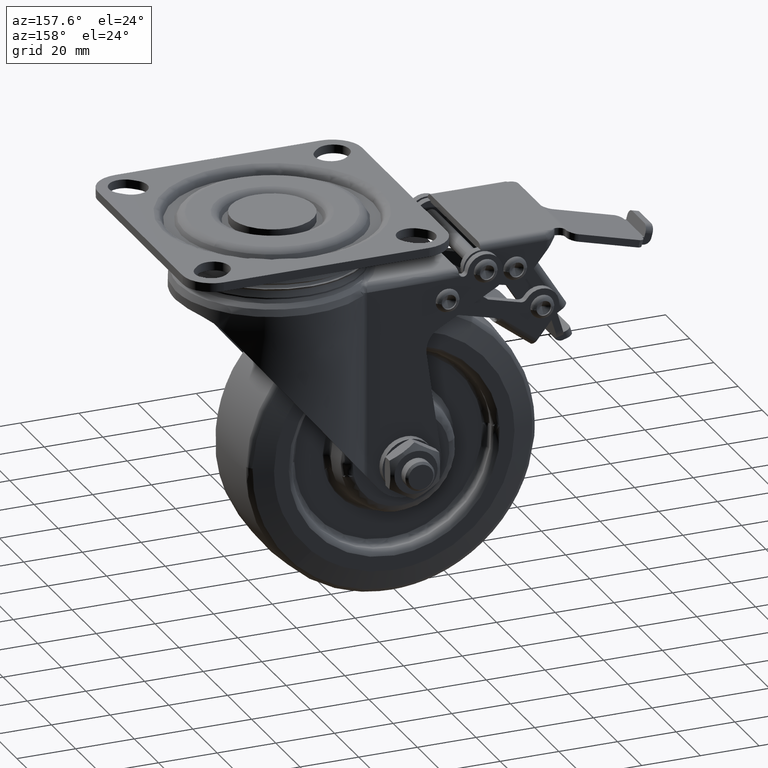
[diagram: clean part render]
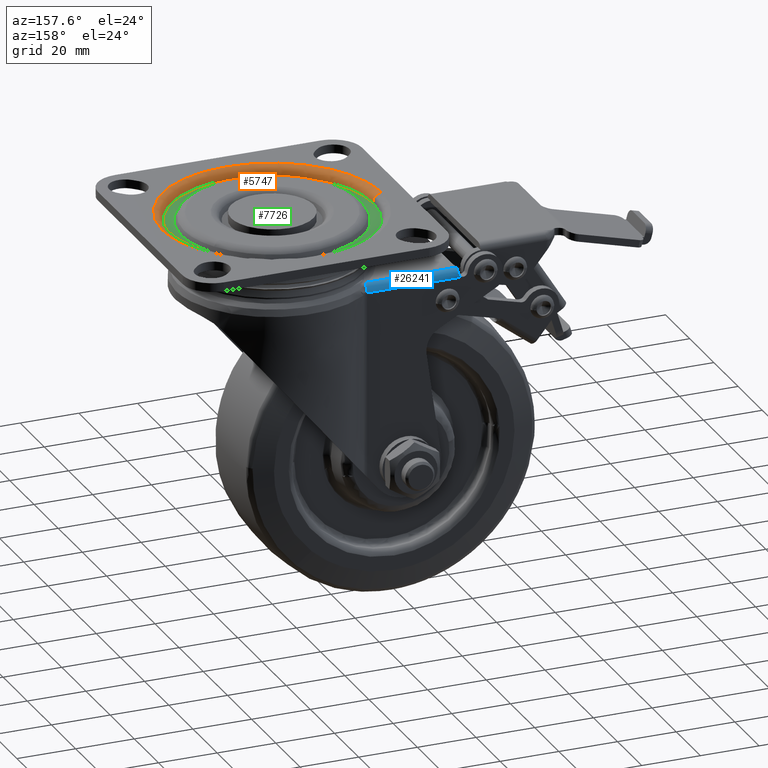
[diagram: same view with three faces highlighted in distinct colors, each labeled with its STEP entity id]
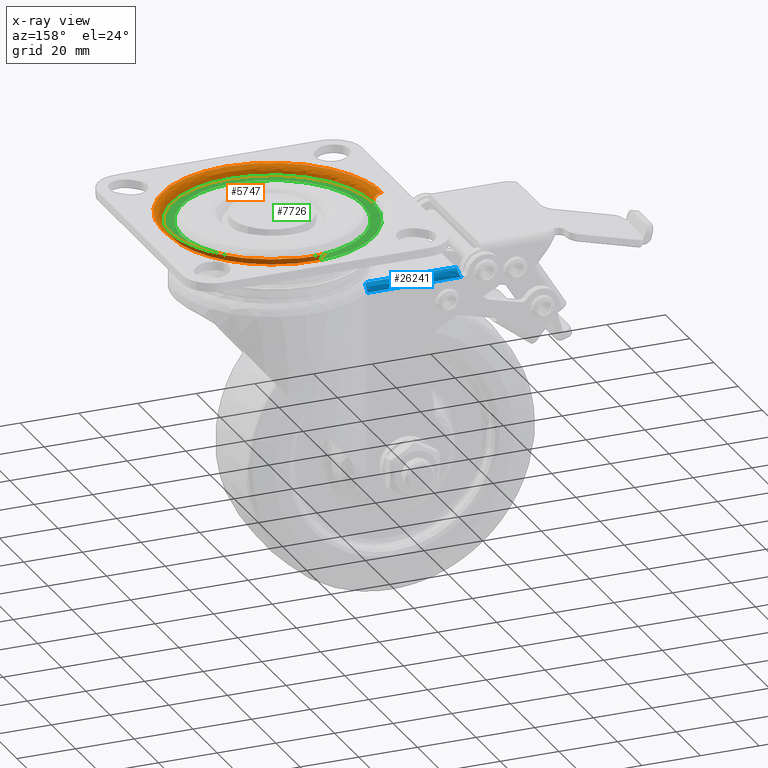
[diagram: x-ray of the same camera — body ghosted, the three highlighted faces saturated]
A machine part, auxiliary view with three faces highlighted in distinct colors.
The next image is the same camera in x-ray (body ghosted, the three faces saturated) — at least one of them is partly hidden behind the body in this view.
Their STEP definitions:

[orange] entity #5747 — the highlighted face is a freeform B-spline surface patch.
#5566=CARTESIAN_POINT('',(-2.406301676067495,34.423260111253967,-3.208611403206546));
#5567=CARTESIAN_POINT('',(-1.421123711593919,34.492127364950299,-3.208611403206547));
#5568=CARTESIAN_POINT('',(-0.433619629411420,34.504537360473059,-3.208611403206547));
#5569=CARTESIAN_POINT('',(34.070917731061655,34.938156989884490,-3.208611403206546));
#5570=CARTESIAN_POINT('',(34.504537360473080,0.433619629411408,-3.208611403206547));
#5571=CARTESIAN_POINT('',(34.938156989884504,-34.070917731061677,-3.208611403206546));
#5572=CARTESIAN_POINT('',(0.433619629411424,-34.504537360473094,-3.208611403206547));
#5573=CARTESIAN_POINT('',(-34.070917731061655,-34.938156989884519,-3.208611403206546));
#5574=CARTESIAN_POINT('',(-34.504537360473080,-0.433619629411440,-3.208611403206547));
#5575=CARTESIAN_POINT('',(-2.389574526185790,34.183970483928917,0.232613379803562));
#5576=CARTESIAN_POINT('',(-1.411244921431946,34.252359014244085,0.232613379803562));
#5577=CARTESIAN_POINT('',(-0.430605368728749,34.264682743004357,0.232613379803562));
#5578=CARTESIAN_POINT('',(33.834077374275616,34.695288111733106,0.232613379803562));
#5579=CARTESIAN_POINT('',(34.264682743004357,0.430605368728737,0.232613379803562));
#5580=CARTESIAN_POINT('',(34.695288111733106,-33.834077374275616,0.232613379803562));
#5581=CARTESIAN_POINT('',(0.430605368728754,-34.264682743004371,0.232613379803562));
#5582=CARTESIAN_POINT('',(-33.834077374275616,-34.695288111733134,0.232613379803562));
#5583=CARTESIAN_POINT('',(-34.264682743004357,-0.430605368728770,0.232613379803562));
#5584=CARTESIAN_POINT('',(-2.629542121289337,37.616818088482454,-0.007262020566590));
#5585=CARTESIAN_POINT('',(-1.552965987750254,37.692074381645163,-0.007262020566590));
#5586=CARTESIAN_POINT('',(-0.473847934984865,37.705635692879198,-0.007262020566590));
#5587=CARTESIAN_POINT('',(37.231787757894331,38.179483627864052,-0.007262020566590));
#5588=CARTESIAN_POINT('',(37.705635692879198,0.473847934984853,-0.007262020566590));
#5589=CARTESIAN_POINT('',(38.179483627864066,-37.231787757894331,-0.007262020566590));
#5590=CARTESIAN_POINT('',(0.473847934984869,-37.705635692879220,-0.007262020566590));
#5591=CARTESIAN_POINT('',(-37.231787757894331,-38.179483627864080,-0.007262020566590));
#5592=CARTESIAN_POINT('',(-37.705635692879198,-0.473847934984886,-0.007262020566590));
#5600=(BOUNDED_SURFACE()B_SPLINE_SURFACE(2,2,((#5566,#5575,#5584),(#5567,#5576,#5585),(#5568,#5577,#5586),(#5569,#5578,#5587),(#5570,#5579,#5588),(#5571,#5580,#5589),(#5572,#5581,#5590),(#5573,#5582,#5591),(#5574,#5583,#5592)),.UNSPECIFIED.,.F.,.F.,.U.)B_SPLINE_SURFACE_WITH_KNOTS((3,2,2,2,3),(3,3),(0.0,2.499104644753304,64.976780346940572,127.454456049127800,189.932131751315100),(0.0,5.467123859227646),.UNSPECIFIED.)GEOMETRIC_REPRESENTATION_ITEM()RATIONAL_B_SPLINE_SURFACE(((0.889999310205112,0.584039647420918,0.889999527423222),(0.899812881342152,0.590479556487248,0.899813100955416),(0.910479805606521,0.597479457065813,0.910480027823212),(0.643806444677780,0.422481775710893,0.643806601808710),(0.910479805606521,0.597479457065813,0.910480027823212),(0.643806444677780,0.422481775710893,0.643806601808710),(0.910479805606521,0.597479457065813,0.910480027823212),(0.643806444677780,0.422481775710893,0.643806601808710),(0.910479805606521,0.597479457065813,0.910480027823212)))REPRESENTATION_ITEM('')SURFACE());
#5601=CARTESIAN_POINT('',(-2.405797179406134,34.416015747491173,-2.999999998103097));
#5602=VERTEX_POINT('',#5601);
#5603=CARTESIAN_POINT('',(34.500000000000000,-1.421085E-014,-3.0));
#5604=VERTEX_POINT('',#5603);
#5605=CARTESIAN_POINT('',(-2.405797179406134,34.416015747491173,-2.999999998103097));
#5606=CARTESIAN_POINT('',(-0.788399758731543,34.529159661014980,-2.999999998248351));
#5607=CARTESIAN_POINT('',(2.314604359119371,34.526837549148233,-2.999999998518621));
#5608=CARTESIAN_POINT('',(6.851462021377080,33.909362198890250,-2.999999998890239));
#5609=CARTESIAN_POINT('',(11.486101814434170,32.659319236304441,-2.999999999246154));
#5610=CARTESIAN_POINT('',(15.898100804561070,30.754125054539301,-2.999999999557565));
#5611=CARTESIAN_POINT('',(19.671310180417979,28.431029877896819,-2.999999999797306));
#5612=CARTESIAN_POINT('',(22.867182419233369,25.930159365392939,-2.999999999979943));
#5613=CARTESIAN_POINT('',(26.292973552244820,22.567676768937009,-3.000000000149571));
#5614=CARTESIAN_POINT('',(29.672134908457970,17.976072430137961,-3.000000000268114));
#5615=CARTESIAN_POINT('',(32.126523925088797,12.918054225993600,-3.000000000288159));
#5616=CARTESIAN_POINT('',(33.564892343575522,8.339355313719764,-3.000000000237949));
#5617=CARTESIAN_POINT('',(34.329274826757711,4.200771396478032,-3.000000000146266));
#5618=CARTESIAN_POINT('',(34.500038292057432,1.400250529117912,-3.000000000053386));
#5619=CARTESIAN_POINT('',(34.500000000000000,-1.421085E-014,-3.0));
#5620=B_SPLINE_CURVE_WITH_KNOTS('',3,(#5605,#5606,#5607,#5608,#5609,#5610,#5611,#5612,#5613,#5614,#5615,#5616,#5617,#5618,#5619),.UNSPECIFIED.,.F.,.U.,(4,1,1,1,1,1,1,1,1,1,1,1,4),(0.000000099860948,4.864041700630061,9.285965481823219,13.707888720098680,19.235280750459030,23.657179215024119,26.973648556199532,31.395482119975568,38.028331106405233,43.997910168517102,48.198719262270281,52.399566655845831,56.600321375926967),.UNSPECIFIED.);
#5621=EDGE_CURVE('',#5602,#5604,#5620,.T.);
#5622=ORIENTED_EDGE('',*,*,#5621,.T.);
#5623=CARTESIAN_POINT('',(0.216693866174809,-34.499319468191878,-3.0));
#5624=VERTEX_POINT('',#5623);
#5625=CARTESIAN_POINT('',(34.500000000000000,-1.421085E-014,-3.0));
#5626=CARTESIAN_POINT('',(34.500077418405553,-1.686741086455553,-3.000000000046313));
#5627=CARTESIAN_POINT('',(34.241818687132742,-5.200769636416224,-3.000000000135672));
#5628=CARTESIAN_POINT('',(32.945868842214409,-10.834915915762259,-3.000000000254493));
#5629=CARTESIAN_POINT('',(30.673076455480381,-16.160882103219819,-3.000000000338067));
#5630=CARTESIAN_POINT('',(27.877402136421509,-20.479309254102240,-3.000000000379222));
#5631=CARTESIAN_POINT('',(24.840717630764789,-24.086429299691101,-3.000000000394541));
#5632=CARTESIAN_POINT('',(20.882747364880519,-27.698251322855171,-3.000000000384168));
#5633=CARTESIAN_POINT('',(15.973182067542041,-30.771943990771302,-3.000000000333019));
#5634=CARTESIAN_POINT('',(10.951737828771980,-32.825380590477472,-3.000000000250616));
#5635=CARTESIAN_POINT('',(5.907178829554650,-34.133905061699082,-3.000000000147175));
#5636=CARTESIAN_POINT('',(2.325088574908647,-34.486309559182047,-3.000000000057945));
#5637=CARTESIAN_POINT('',(0.216693866174809,-34.499319468191878,-3.0));
#5638=B_SPLINE_CURVE_WITH_KNOTS('',3,(#5625,#5626,#5627,#5628,#5629,#5630,#5631,#5632,#5633,#5634,#5635,#5636,#5637),.UNSPECIFIED.,.F.,.U.,(4,1,1,1,1,1,1,1,1,1,4),(0.000000092349815,5.060227279656345,10.542146257219160,17.289157835340529,22.349393462399600,25.933776454980219,31.415597966214719,38.373454003608501,43.222871907226512,47.650600684387278,53.975861979983918),.UNSPECIFIED.);
#5639=EDGE_CURVE('',#5604,#5624,#5638,.T.);
#5640=ORIENTED_EDGE('',*,*,#5639,.T.);
#5641=CARTESIAN_POINT('',(-34.497276025030366,-0.433528376076844,-2.999999998105465));
#5642=VERTEX_POINT('',#5641);
#5643=CARTESIAN_POINT('',(0.216693866174809,-34.499319468191878,-3.0));
#5644=CARTESIAN_POINT('',(-1.259171772498420,-34.508638917132522,-2.999999999959472));
#5645=CARTESIAN_POINT('',(-4.212082498289279,-34.337433148554418,-2.999999999873177));
#5646=CARTESIAN_POINT('',(-8.502985037416872,-33.529037076181581,-2.999999999732402));
#5647=CARTESIAN_POINT('',(-12.189256048774689,-32.342022754943670,-2.999999999597951));
#5648=CARTESIAN_POINT('',(-15.793583374292430,-30.752281167307661,-2.999999999454731));
#5649=CARTESIAN_POINT('',(-19.023332274656831,-28.879786578982351,-2.999999999314005));
#5650=CARTESIAN_POINT('',(-22.679931595529339,-26.131210353595819,-2.999999999137582));
#5651=CARTESIAN_POINT('',(-26.202425667553609,-22.674639696256659,-2.999999998945239));
#5652=CARTESIAN_POINT('',(-29.539257075804041,-18.125592940309851,-2.999999998728280));
#5653=CARTESIAN_POINT('',(-32.019840695206668,-13.216100421047329,-2.999999998524846));
#5654=CARTESIAN_POINT('',(-33.923637255369727,-7.314168656454966,-2.999999998310272));
#5655=CARTESIAN_POINT('',(-34.465125739976941,-3.033767389562866,-2.999999998177685));
#5656=CARTESIAN_POINT('',(-34.497276025030366,-0.433528376076844,-2.999999998105465));
#5657=B_SPLINE_CURVE_WITH_KNOTS('',3,(#5643,#5644,#5645,#5646,#5647,#5648,#5649,#5650,#5651,#5652,#5653,#5654,#5655,#5656),.UNSPECIFIED.,.F.,.U.,(4,1,1,1,1,1,1,1,1,1,1,4),(0.000000092413735,4.427684858745451,8.855386285656401,13.072241462064451,16.024049914516471,20.662615175849179,24.246913573782109,29.728789637540249,35.421555959082340,41.114312653559217,46.174541594157382,53.975712774967832),.UNSPECIFIED.);
#5658=EDGE_CURVE('',#5624,#5642,#5657,.T.);
#5659=ORIENTED_EDGE('',*,*,#5658,.T.);
#5660=CARTESIAN_POINT('',(-37.497039153826051,-0.471226495913654,-5.655797E-016));
#5661=VERTEX_POINT('',#5660);
#5662=CARTESIAN_POINT('',(-34.497276025030366,-0.433528376076844,-2.999999998105465));
#5663=CARTESIAN_POINT('',(-34.497139065082443,-0.433526654886830,-2.705465083829029));
#5664=CARTESIAN_POINT('',(-34.573824111541860,-0.434490358320274,-2.190134984334034));
#5665=CARTESIAN_POINT('',(-34.894775004632614,-0.438523758514447,-1.441095876137282));
#5666=CARTESIAN_POINT('',(-35.322132109110917,-0.443894369003963,-0.893465107227986));
#5667=CARTESIAN_POINT('',(-35.860687783506378,-0.450662415510086,-0.462517414794491));
#5668=CARTESIAN_POINT('',(-36.540093520841417,-0.459200529300164,-0.109852838732606));
#5669=CARTESIAN_POINT('',(-37.128862815200677,-0.466599611997845,0.000328619158663));
#5670=CARTESIAN_POINT('',(-37.497039153826051,-0.471226495913654,-5.655797E-016));
#5671=B_SPLINE_CURVE_WITH_KNOTS('',3,(#5662,#5663,#5664,#5665,#5666,#5667,#5668,#5669,#5670),.UNSPECIFIED.,.F.,.U.,(4,1,1,1,1,1,4),(0.000000258700864,0.883580401370525,1.546296145813237,2.429851766048508,2.945283092415454,3.608015534739220,4.712507231074428),.UNSPECIFIED.);
#5672=EDGE_CURVE('',#5642,#5661,#5671,.T.);
#5673=ORIENTED_EDGE('',*,*,#5672,.T.);
#5674=CARTESIAN_POINT('',(0.235554598372626,-37.499260179784713,0.0));
#5675=VERTEX_POINT('',#5674);
#5676=CARTESIAN_POINT('',(0.235554598372626,-37.499260179784713,0.0));
#5677=CARTESIAN_POINT('',(-1.139459694170756,-37.507919390657932,-1.037035E-017));
#5678=CARTESIAN_POINT('',(-4.119723225363534,-37.362602483044590,-3.408477E-017));
#5679=CARTESIAN_POINT('',(-8.195267330137378,-36.671852793815773,-7.022461E-017));
#5680=CARTESIAN_POINT('',(-12.166363952188529,-35.538952560422238,-1.089058E-016));
#5681=CARTESIAN_POINT('',(-16.005029828698689,-34.011412478532378,-1.495576E-016));
#5682=CARTESIAN_POINT('',(-19.771321780358878,-31.964094442085319,-1.935796E-016));
#5683=CARTESIAN_POINT('',(-23.585150777120759,-29.275590355216870,-2.427972E-016));
#5684=CARTESIAN_POINT('',(-27.614331702703652,-25.624623549519931,-3.009066E-016));
#5685=CARTESIAN_POINT('',(-31.186076058048432,-21.111945422868409,-3.620420E-016));
#5686=CARTESIAN_POINT('',(-33.655084007200941,-16.704015785151348,-4.140183E-016));
#5687=CARTESIAN_POINT('',(-35.637716659541702,-12.063232829333529,-4.640592E-016));
#5688=CARTESIAN_POINT('',(-37.070815350152742,-6.806921851019248,-5.145707E-016));
#5689=CARTESIAN_POINT('',(-37.472168232482673,-2.457248718508235,-5.504154E-016));
#5690=CARTESIAN_POINT('',(-37.497039153826051,-0.471226495913654,-5.655797E-016));
#5691=B_SPLINE_CURVE_WITH_KNOTS('',3,(#5676,#5677,#5678,#5679,#5680,#5681,#5682,#5683,#5684,#5685,#5686,#5687,#5688,#5689,#5690),.UNSPECIFIED.,.F.,.U.,(4,1,1,1,1,1,1,1,1,1,1,1,4),(0.000000086310315,4.125132081495686,8.937883303690100,12.375539048819039,16.500735186640739,21.313461763995210,25.209457582527040,30.480459667144260,37.584970538029580,42.397711570360613,45.606194690418327,52.710714702277507,58.669270800805407),.UNSPECIFIED.);
#5692=EDGE_CURVE('',#5675,#5661,#5691,.T.);
#5693=ORIENTED_EDGE('',*,*,#5692,.F.);
#5694=CARTESIAN_POINT('',(37.500000000000000,-1.421085E-014,0.0));
#5695=VERTEX_POINT('',#5694);
#5696=CARTESIAN_POINT('',(37.500000000000000,-1.421085E-014,0.0));
#5697=CARTESIAN_POINT('',(37.500101246543700,-1.909797757073228,1.440156E-017));
#5698=CARTESIAN_POINT('',(37.236829802931027,-5.347420989325746,3.832519E-017));
#5699=CARTESIAN_POINT('',(36.245768356092633,-9.909655206183230,6.520646E-017));
#5700=CARTESIAN_POINT('',(34.906925610948868,-13.897534175250010,8.511785E-017));
#5701=CARTESIAN_POINT('',(33.021415701160642,-17.999734240857450,1.017432E-016));
#5702=CARTESIAN_POINT('',(30.408064950081801,-22.147349110663679,1.131881E-016));
#5703=CARTESIAN_POINT('',(27.006333804870469,-26.188028328773431,1.178444E-016));
#5704=CARTESIAN_POINT('',(23.023533955676971,-29.777830569210590,1.146918E-016));
#5705=CARTESIAN_POINT('',(18.804422050997179,-32.565008942632453,1.036939E-016));
#5706=CARTESIAN_POINT('',(14.064302408328651,-34.886807646615090,8.523333E-017));
#5707=CARTESIAN_POINT('',(8.099934525514035,-36.870260045937179,5.493192E-017));
#5708=CARTESIAN_POINT('',(3.138462325174737,-37.481684159545047,2.189472E-017));
#5709=CARTESIAN_POINT('',(0.235554598372626,-37.499260179784713,0.0));
#5710=B_SPLINE_CURVE_WITH_KNOTS('',3,(#5696,#5697,#5698,#5699,#5700,#5701,#5702,#5703,#5704,#5705,#5706,#5707,#5708,#5709),.UNSPECIFIED.,.F.,.U.,(4,1,1,1,1,1,1,1,1,1,1,4),(0.000000086297817,5.729391863356852,10.312963125231480,13.979815791670241,18.334202862369949,23.834480029740011,28.647204805056770,34.147418488538612,39.876835909910547,43.772869967556062,49.960668234609393,58.669397408691637),.UNSPECIFIED.);
#5711=EDGE_CURVE('',#5695,#5675,#5710,.T.);
#5712=ORIENTED_EDGE('',*,*,#5711,.F.);
#5713=CARTESIAN_POINT('',(-2.614996934104881,37.408712767930538,-5.143064E-016));
#5714=VERTEX_POINT('',#5713);
#5715=CARTESIAN_POINT('',(-2.614996934104881,37.408712767930538,-5.143064E-016));
#5716=CARTESIAN_POINT('',(-0.537296393311170,37.554101972721092,-4.677625E-016));
#5717=CARTESIAN_POINT('',(3.803107010806584,37.495218633529277,-3.739956E-016));
#5718=CARTESIAN_POINT('',(9.335497333562232,36.451151034046937,-2.637387E-016));
#5719=CARTESIAN_POINT('',(13.816348424217979,34.928334889191277,-1.809101E-016));
#5720=CARTESIAN_POINT('',(17.904589563874119,33.069024406239507,-1.098299E-016));
#5721=CARTESIAN_POINT('',(22.070858988688421,30.485687763964631,-4.397324E-017));
#5722=CARTESIAN_POINT('',(25.931512517244769,27.217606721672318,8.697450E-018));
#5723=CARTESIAN_POINT('',(29.091593547595640,23.802224085247200,4.473493E-017));
#5724=CARTESIAN_POINT('',(32.204659708859147,19.515357989817360,7.142201E-017));
#5725=CARTESIAN_POINT('',(34.796847488989613,14.425226719335949,7.911222E-017));
#5726=CARTESIAN_POINT('',(36.328498267502390,9.603319786618506,6.631725E-017));
#5727=CARTESIAN_POINT('',(37.261962460926419,4.966551975943140,4.229129E-017));
#5728=CARTESIAN_POINT('',(37.500159220260173,2.002666809906771,1.914263E-017));
#5729=CARTESIAN_POINT('',(37.500000000000000,-1.421085E-014,0.0));
#5730=B_SPLINE_CURVE_WITH_KNOTS('',3,(#5715,#5716,#5717,#5718,#5719,#5720,#5721,#5722,#5723,#5724,#5725,#5726,#5727,#5728,#5729),.UNSPECIFIED.,.F.,.U.,(4,1,1,1,1,1,1,1,1,1,1,1,4),(0.000000092289824,6.248336280273691,12.977304866116871,16.822448966293610,20.427259713410869,26.435324413065779,31.481954273202369,35.567443591053959,40.373842953202512,47.343175170784413,52.630254655463418,55.514115025209918,61.522088451841519),.UNSPECIFIED.);
#5731=EDGE_CURVE('',#5714,#5695,#5730,.T.);
#5732=ORIENTED_EDGE('',*,*,#5731,.F.);
#5733=CARTESIAN_POINT('',(-2.405797179406134,34.416015747491173,-2.999999998103097));
#5734=CARTESIAN_POINT('',(-2.405782368462383,34.415803870336241,-2.656355688292079));
#5735=CARTESIAN_POINT('',(-2.412040403785732,34.505327893515542,-2.141114623700016));
#5736=CARTESIAN_POINT('',(-2.435650506462098,34.843081080917777,-1.401977323584643));
#5737=CARTESIAN_POINT('',(-2.463321020283357,35.238920284420388,-0.893467365726534));
#5738=CARTESIAN_POINT('',(-2.500879668292780,35.776213715503118,-0.462515007904121));
#5739=CARTESIAN_POINT('',(-2.548261227434926,36.454028328886388,-0.109857347670641));
#5740=CARTESIAN_POINT('',(-2.589320574091634,37.041400835857267,0.000330034082491));
#5741=CARTESIAN_POINT('',(-2.614996934104881,37.408712767930538,-5.143064E-016));
#5742=B_SPLINE_CURVE_WITH_KNOTS('',3,(#5733,#5734,#5735,#5736,#5737,#5738,#5739,#5740,#5741),.UNSPECIFIED.,.F.,.U.,(4,1,1,1,1,1,4),(0.000000258696628,1.030855402665474,1.546296146115007,2.429851766520124,2.945283092994742,3.608015535448910,4.712507231999989),.UNSPECIFIED.);
#5743=EDGE_CURVE('',#5602,#5714,#5742,.T.);
#5744=ORIENTED_EDGE('',*,*,#5743,.F.);
#5745=EDGE_LOOP('',(#5622,#5640,#5659,#5673,#5693,#5712,#5732,#5744));
#5746=FACE_OUTER_BOUND('',#5745,.T.);
#5747=ADVANCED_FACE('',(#5746),#5600,.T.);

[blue] entity #26241 — the highlighted face is a freeform B-spline surface patch.
#24302=CARTESIAN_POINT('',(-22.961932978091550,23.0,-18.800011000000101));
#24303=VERTEX_POINT('',#24302);
#25417=CARTESIAN_POINT('',(-53.151530999999999,25.047138246430901,-19.865011000000099));
#25418=VERTEX_POINT('',#25417);
#25424=CARTESIAN_POINT('',(-54.586531000000001,25.500000000000000,-21.300011000000101));
#25425=VERTEX_POINT('',#25424);
#25426=CARTESIAN_POINT('',(-54.586531000000001,25.500000000000000,-21.300011000000101));
#25427=CARTESIAN_POINT('',(-54.487998288504912,25.500000000000000,-21.300011000000101));
#25428=CARTESIAN_POINT('',(-54.391170279799823,25.500057316128672,-21.289969863019589));
#25429=CARTESIAN_POINT('',(-54.248384629045937,25.499706305577551,-21.260447911825331));
#25430=CARTESIAN_POINT('',(-54.201202095417628,25.499506248356852,-21.248178010289951));
#25431=CARTESIAN_POINT('',(-54.107685177876959,25.498719348100590,-21.218649068944721));
#25432=CARTESIAN_POINT('',(-54.061424488795822,25.498128694347649,-21.201374605712349));
#25433=CARTESIAN_POINT('',(-53.927117567365137,25.495382365311819,-21.143258653620439));
#25434=CARTESIAN_POINT('',(-53.842407624748923,25.492287324406160,-21.095870372869889));
#25435=CARTESIAN_POINT('',(-53.722649679583107,25.483500278546011,-21.011881268417110));
#25436=CARTESIAN_POINT('',(-53.683741760597869,25.479838114628759,-20.981511204933870));
#25437=CARTESIAN_POINT('',(-53.610057540536452,25.470801102553949,-20.917674622132431));
#25438=CARTESIAN_POINT('',(-53.540272093786982,25.460056350013069,-20.850659238594250));
#25439=CARTESIAN_POINT('',(-53.478081713869152,25.445123526632340,-20.777622659150289));
#25440=CARTESIAN_POINT('',(-53.419685816673883,25.427653665926218,-20.701666352274572));
#25441=CARTESIAN_POINT('',(-53.392269073454251,25.417596403371160,-20.662037089644670));
#25442=CARTESIAN_POINT('',(-53.316645301493537,25.383209735403749,-20.540113851284421));
#25443=CARTESIAN_POINT('',(-53.275873867004172,25.355153364314081,-20.456384749104760));
#25444=CARTESIAN_POINT('',(-53.227627073282633,25.303908082706698,-20.328352262789029));
#25445=CARTESIAN_POINT('',(-53.213683904478408,25.285251818426520,-20.285166494686148));
#25446=CARTESIAN_POINT('',(-53.190108729968301,25.244784379470399,-20.198544553269510));
#25447=CARTESIAN_POINT('',(-53.180617109261547,25.223242590831180,-20.155671788159118));
#25448=CARTESIAN_POINT('',(-53.158277413718750,25.154652143399868,-20.028494763881771));
#25449=CARTESIAN_POINT('',(-53.151531000000013,25.103650157195410,-19.945629602024429));
#25450=CARTESIAN_POINT('',(-53.151530999999999,25.047138246430901,-19.865011000000099));
#25451=B_SPLINE_CURVE_WITH_KNOTS('',3,(#25426,#25427,#25428,#25429,#25430,#25431,#25432,#25433,#25434,#25435,#25436,#25437,#25438,#25439,#25440,#25441,#25442,#25443,#25444,#25445,#25446,#25447,#25448,#25449,#25450),.UNSPECIFIED.,.F.,.U.,(4,2,2,2,2,2,1,2,2,2,2,2,4),(0.0,0.124999999999997,0.187499999999996,0.249999999999995,0.374999999999987,0.437499999999987,0.499999999999986,0.562499999999986,0.624999999999985,0.749999999999987,0.812499999999989,0.874999999999991,1.0),.UNSPECIFIED.);
#25452=EDGE_CURVE('',#25425,#25418,#25451,.T.);
#25662=CARTESIAN_POINT('',(-21.789188771655251,23.745621195071600,-18.913790340995551));
#25663=VERTEX_POINT('',#25662);
#25791=CARTESIAN_POINT('',(-22.961932978091550,23.0,-18.800011000000101));
#25792=CARTESIAN_POINT('',(-22.757659434187051,23.113297474017688,-18.800011000000101));
#25793=CARTESIAN_POINT('',(-22.556664399690568,23.230599818786882,-18.807558384178069));
#25794=CARTESIAN_POINT('',(-22.262291686821591,23.415446477300652,-18.833986202044070));
#25795=CARTESIAN_POINT('',(-22.165368369447140,23.478563059028019,-18.845337002039400));
#25796=CARTESIAN_POINT('',(-21.974642800846230,23.608743547088871,-18.874340302727230));
#25797=CARTESIAN_POINT('',(-21.880826957698051,23.675789543138588,-18.891970079079751));
#25798=CARTESIAN_POINT('',(-21.789188771655251,23.745621195071600,-18.913790340995551));
#25799=B_SPLINE_CURVE_WITH_KNOTS('',3,(#25791,#25792,#25793,#25794,#25795,#25796,#25797,#25798),.UNSPECIFIED.,.F.,.U.,(4,2,2,4),(0.0,0.500000000000002,0.750000000000001,1.0),.UNSPECIFIED.);
#25800=EDGE_CURVE('',#24303,#25663,#25799,.T.);
#26161=CARTESIAN_POINT('',(-21.789188771655251,25.500000000000000,-21.300011000000101));
#26162=VERTEX_POINT('',#26161);
#26188=CARTESIAN_POINT('',(-21.789188771655251,25.500000000000000,-21.300011000000101));
#26189=CARTESIAN_POINT('',(-21.789188771655301,25.500187059232100,-21.019318090025589));
#26190=CARTESIAN_POINT('',(-21.789188771655169,25.424090573726691,-20.573706428260721));
#26191=CARTESIAN_POINT('',(-21.789188771655329,25.115982465752399,-19.911879166760979));
#26192=CARTESIAN_POINT('',(-21.789188771655219,24.607005280468421,-19.311600727638950));
#26193=CARTESIAN_POINT('',(-21.789188771655279,24.060945493464839,-19.011956057697009));
#26194=CARTESIAN_POINT('',(-21.789188771655251,23.745621195071600,-18.913790340995551));
#26195=B_SPLINE_CURVE_WITH_KNOTS('',3,(#26188,#26189,#26190,#26191,#26192,#26193,#26194),.UNSPECIFIED.,.F.,.U.,(4,1,1,1,4),(0.000000214698281,0.842006526080074,1.337302231548768,2.179299933987056,3.169899927072900),.UNSPECIFIED.);
#26196=EDGE_CURVE('',#26162,#25663,#26195,.T.);
#26201=CARTESIAN_POINT('',(-55.406464555708617,22.934557629230309,-18.800867687561212));
#26202=CARTESIAN_POINT('',(-20.948756877053921,22.934557629230309,-18.800867687561212));
#26203=CARTESIAN_POINT('',(-55.406464555708617,25.661893971485288,-18.729449872010118));
#26204=CARTESIAN_POINT('',(-20.948756877053921,25.661893971485288,-18.729449872010118));
#26205=CARTESIAN_POINT('',(-55.406464555708617,25.495336996054672,-21.452632348837231));
#26206=CARTESIAN_POINT('',(-20.948756877053921,25.495336996054672,-21.452632348837231));
#26214=(BOUNDED_SURFACE()B_SPLINE_SURFACE(1,2,((#26201,#26203,#26205),(#26202,#26204,#26206)),.UNSPECIFIED.,.F.,.F.,.U.)B_SPLINE_SURFACE_WITH_KNOTS((2,2),(3,3),(0.0,34.457707678654707),(0.0,4.400105308918325),.UNSPECIFIED.)GEOMETRIC_REPRESENTATION_ITEM()RATIONAL_B_SPLINE_SURFACE(((1.0,0.675590207615660,1.0),(1.0,0.675590207615660,1.0)))REPRESENTATION_ITEM('')SURFACE());
#26215=CARTESIAN_POINT('',(-53.151530999999999,23.0,-18.800011000000101));
#26216=VERTEX_POINT('',#26215);
#26217=CARTESIAN_POINT('',(-22.961932978091550,23.0,-18.800011000000101));
#26218=CARTESIAN_POINT('',(-53.151530999999999,23.0,-18.800011000000101));
#26219=QUASI_UNIFORM_CURVE('',1,(#26217,#26218),.UNSPECIFIED.,.F.,.U.);
#26220=EDGE_CURVE('',#24303,#26216,#26219,.T.);
#26221=ORIENTED_EDGE('',*,*,#26220,.F.);
#26222=ORIENTED_EDGE('',*,*,#25800,.T.);
#26223=ORIENTED_EDGE('',*,*,#26196,.F.);
#26224=CARTESIAN_POINT('',(-54.586531000000001,25.500000000000000,-21.300011000000101));
#26225=CARTESIAN_POINT('',(-21.789188771655251,25.500000000000000,-21.300011000000101));
#26226=QUASI_UNIFORM_CURVE('',1,(#26224,#26225),.UNSPECIFIED.,.F.,.U.);
#26227=EDGE_CURVE('',#25425,#26162,#26226,.T.);
#26228=ORIENTED_EDGE('',*,*,#26227,.F.);
#26229=ORIENTED_EDGE('',*,*,#25452,.T.);
#26230=CARTESIAN_POINT('',(-53.151530999999999,23.0,-18.800011000000101));
#26231=CARTESIAN_POINT('',(-53.151530999999999,23.299854212985650,-18.799788206816721));
#26232=CARTESIAN_POINT('',(-53.151531000000027,23.799354635201720,-18.891021805225090));
#26233=CARTESIAN_POINT('',(-53.151530999999949,24.513760501569521,-19.262709728749599));
#26234=CARTESIAN_POINT('',(-53.151531000000048,24.875228742444929,-19.619321959631119));
#26235=CARTESIAN_POINT('',(-53.151530999999999,25.047138246430901,-19.865011000000099));
#26236=B_SPLINE_CURVE_WITH_KNOTS('',3,(#26230,#26231,#26232,#26233,#26234,#26235),.UNSPECIFIED.,.F.,.U.,(4,1,1,4),(0.000000072769784,0.899492191709643,1.499125911711726,2.398624601460743),.UNSPECIFIED.);
#26237=EDGE_CURVE('',#26216,#25418,#26236,.T.);
#26238=ORIENTED_EDGE('',*,*,#26237,.F.);
#26239=EDGE_LOOP('',(#26221,#26222,#26223,#26228,#26229,#26238));
#26240=FACE_OUTER_BOUND('',#26239,.T.);
#26241=ADVANCED_FACE('',(#26240),#26214,.T.);

[green] entity #7726 — the highlighted face is a freeform B-spline surface patch.
#4616=CARTESIAN_POINT('',(-22.486605051348590,21.338991419441658,-2.999999785082339));
#4617=VERTEX_POINT('',#4616);
#4623=CARTESIAN_POINT('',(-31.0,-1.421085E-014,-3.0));
#4624=VERTEX_POINT('',#4623);
#4625=CARTESIAN_POINT('',(-31.0,-1.421085E-014,-3.0));
#4626=CARTESIAN_POINT('',(-31.000089230263200,1.716148791654880,-2.999999982715643));
#4627=CARTESIAN_POINT('',(-30.699072862764051,5.332320627998724,-2.999999946295031));
#4628=CARTESIAN_POINT('',(-29.411245331679972,10.212374356280341,-2.999999897145131));
#4629=CARTESIAN_POINT('',(-27.490175735278381,14.535154893214960,-2.999999853607779));
#4630=CARTESIAN_POINT('',(-25.257968475042681,18.138729154528331,-2.999999817314163));
#4631=CARTESIAN_POINT('',(-23.457020463053080,20.316474366441209,-2.999999795380604));
#4632=CARTESIAN_POINT('',(-22.486605051348590,21.338991419441658,-2.999999785082339));
#4633=B_SPLINE_CURVE_WITH_KNOTS('',3,(#4625,#4626,#4627,#4628,#4629,#4630,#4631,#4632),.UNSPECIFIED.,.F.,.U.,(4,1,1,1,1,4),(0.000000024545564,5.148455080996108,10.848539104185949,15.077620679290060,19.306711453400489,23.535799228076339),.UNSPECIFIED.);
#4634=EDGE_CURVE('',#4624,#4617,#4633,.T.);
#4636=CARTESIAN_POINT('',(-0.000001988047841,-30.999999999999950,-3.0));
#4637=VERTEX_POINT('',#4636);
#4638=CARTESIAN_POINT('',(-0.000001988047841,-30.999999999999950,-3.0));
#4639=CARTESIAN_POINT('',(-2.092360241256942,-31.000225281695570,-3.000000000000002));
#4640=CARTESIAN_POINT('',(-6.276997777539729,-30.574834637545418,-3.000000000000001));
#4641=CARTESIAN_POINT('',(-11.385247826046379,-28.973748794569019,-3.000000000000004));
#4642=CARTESIAN_POINT('',(-16.050704319619339,-26.661076443186730,-3.0));
#4643=CARTESIAN_POINT('',(-19.547094040576649,-24.214667320446750,-3.000000000000001));
#4644=CARTESIAN_POINT('',(-22.812293012862870,-21.105659715713418,-2.999999999999997));
#4645=CARTESIAN_POINT('',(-25.594206867941889,-17.716237863858911,-3.000000000000010));
#4646=CARTESIAN_POINT('',(-27.881878576667720,-13.818418485416441,-2.999999999999983));
#4647=CARTESIAN_POINT('',(-29.745366998907549,-9.158752999321656,-2.999999999999991));
#4648=CARTESIAN_POINT('',(-30.777254618298269,-4.691948496925165,-3.000000000000056));
#4649=CARTESIAN_POINT('',(-31.000024964146728,-1.394881608290622,-2.999999999999891));
#4650=CARTESIAN_POINT('',(-31.0,-1.421085E-014,-3.0));
#4651=B_SPLINE_CURVE_WITH_KNOTS('',3,(#4638,#4639,#4640,#4641,#4642,#4643,#4644,#4645,#4646,#4647,#4648,#4649,#4650),.UNSPECIFIED.,.F.,.U.,(4,1,1,1,1,1,1,1,1,1,4),(0.000000097700486,6.277057179021355,12.554118998918140,15.977991292576879,21.874654052126591,25.298400230583169,29.483115360191821,34.999357499310413,38.803651069990728,44.510093445103891,48.694761397974233),.UNSPECIFIED.);
#4652=EDGE_CURVE('',#4637,#4624,#4651,.T.);
#4654=CARTESIAN_POINT('',(31.0,-1.421085E-014,-3.0));
#4655=VERTEX_POINT('',#4654);
#4656=CARTESIAN_POINT('',(31.0,-1.421085E-014,-3.0));
#4657=CARTESIAN_POINT('',(31.000051802928510,-1.394902370587770,-3.000000000000004));
#4658=CARTESIAN_POINT('',(30.824239435571791,-3.994469449999210,-2.999999999999997));
#4659=CARTESIAN_POINT('',(30.043479333776752,-7.983568200876372,-3.000000000000002));
#4660=CARTESIAN_POINT('',(28.574683198774039,-12.385079326396660,-3.0));
#4661=CARTESIAN_POINT('',(26.305884594460000,-16.661001796158381,-3.000000000000022));
#4662=CARTESIAN_POINT('',(23.112022355243909,-20.858708400055910,-2.999999999999966));
#4663=CARTESIAN_POINT('',(19.837940518299590,-23.976032935153508,-3.000000000000093));
#4664=CARTESIAN_POINT('',(16.403227213444680,-26.378984145945481,-2.999999999999897));
#4665=CARTESIAN_POINT('',(12.837449281444950,-28.327501113119531,-3.000000000000159));
#4666=CARTESIAN_POINT('',(8.850036239754161,-29.837643193000918,-2.999999999999963));
#4667=CARTESIAN_POINT('',(4.311480483988621,-30.798275602304749,-2.999999999999939));
#4668=CARTESIAN_POINT('',(1.458302171212292,-31.000072472477090,-3.000000000000134));
#4669=CARTESIAN_POINT('',(-0.000001988047841,-30.999999999999950,-3.0));
#4670=B_SPLINE_CURVE_WITH_KNOTS('',3,(#4656,#4657,#4658,#4659,#4660,#4661,#4662,#4663,#4664,#4665,#4666,#4667,#4668,#4669),.UNSPECIFIED.,.F.,.U.,(4,1,1,1,1,1,1,1,1,1,1,4),(0.000000097500866,4.184704063866249,7.798767421931160,12.173691426956321,18.070356940614190,22.255069348983358,27.961401044971289,31.575481666188541,34.809138934884977,40.135139977510640,44.319854884537122,48.694763638971310),.UNSPECIFIED.);
#4671=EDGE_CURVE('',#4655,#4637,#4670,.T.);
#4673=CARTESIAN_POINT('',(13.790325100351330,27.763770715067452,-3.000000171485423));
#4674=VERTEX_POINT('',#4673);
#4675=CARTESIAN_POINT('',(13.790325100351330,27.763770715067452,-3.000000171485423));
#4676=CARTESIAN_POINT('',(16.037393263625059,26.648392105186890,-3.000000164596193));
#4677=CARTESIAN_POINT('',(19.353222172511639,24.463271903504712,-3.000000151099592));
#4678=CARTESIAN_POINT('',(23.659923149680822,20.260986738405389,-3.000000125143818));
#4679=CARTESIAN_POINT('',(26.624721295811099,16.182685194311070,-3.000000099953775));
#4680=CARTESIAN_POINT('',(29.073406583712099,11.179899557759301,-3.000000069053709));
#4681=CARTESIAN_POINT('',(30.622826406442361,5.913057078844836,-3.000000036522526));
#4682=CARTESIAN_POINT('',(31.000219708666961,1.971046396748425,-3.000000012174318));
#4683=CARTESIAN_POINT('',(31.0,-1.421085E-014,-3.0));
#4684=B_SPLINE_CURVE_WITH_KNOTS('',3,(#4675,#4676,#4677,#4678,#4679,#4680,#4681,#4682,#4683),.UNSPECIFIED.,.F.,.U.,(4,1,1,1,1,1,4),(0.000000027011495,7.525786954020095,11.826257318566370,18.008107517404259,22.577359479857151,28.490492243954041,34.403612359877357),.UNSPECIFIED.);
#4685=EDGE_CURVE('',#4674,#4655,#4684,.T.);
#4724=CARTESIAN_POINT('',(0.000001988048854,30.999999999999929,-3.0));
#4725=VERTEX_POINT('',#4724);
#4726=CARTESIAN_POINT('',(0.000001988048854,30.999999999999929,-3.0));
#4727=CARTESIAN_POINT('',(2.158603837578066,31.000373653925699,-3.000000026842641));
#4728=CARTESIAN_POINT('',(5.656807800412441,30.633031555082489,-3.000000070343510));
#4729=CARTESIAN_POINT('',(10.252819484567469,29.342526047306752,-3.000000127495840));
#4730=CARTESIAN_POINT('',(12.657071621613261,28.326698107181510,-3.000000157393185));
#4731=CARTESIAN_POINT('',(13.790325100351330,27.763770715067452,-3.000000171485423));
#4732=B_SPLINE_CURVE_WITH_KNOTS('',3,(#4726,#4727,#4728,#4729,#4730,#4731),.UNSPECIFIED.,.F.,.U.,(4,1,1,4),(8.859132E-009,6.475717360117942,10.495107194170920,14.291210823420130),.UNSPECIFIED.);
#4733=EDGE_CURVE('',#4725,#4674,#4732,.T.);
#4735=CARTESIAN_POINT('',(-22.486605051348590,21.338991419441658,-2.999999785082339));
#4736=CARTESIAN_POINT('',(-20.728193913163771,23.193045008589849,-2.999999801888495));
#4737=CARTESIAN_POINT('',(-17.871316850756550,25.539576367213289,-2.999999829193346));
#4738=CARTESIAN_POINT('',(-13.577403281739070,27.943463463707520,-2.999999870232800));
#4739=CARTESIAN_POINT('',(-9.762795036283949,29.539756678431001,-2.999999906691222));
#4740=CARTESIAN_POINT('',(-5.175906416562951,30.713106303397730,-2.999999950530810));
#4741=CARTESIAN_POINT('',(-1.703470237351640,31.000104804926831,-2.999999983718912));
#4742=CARTESIAN_POINT('',(0.000001988048854,30.999999999999929,-3.0));
#4743=B_SPLINE_CURVE_WITH_KNOTS('',3,(#4735,#4736,#4737,#4738,#4739,#4740,#4741,#4742),.UNSPECIFIED.,.F.,.U.,(4,1,1,1,1,4),(0.000000028071558,7.665630002259075,11.007068893580490,14.741563404996111,20.048552101657769,25.158965045787049),.UNSPECIFIED.);
#4744=EDGE_CURVE('',#4617,#4725,#4743,.T.);
#5601=CARTESIAN_POINT('',(-2.405797179406134,34.416015747491173,-2.999999998103097));
#5602=VERTEX_POINT('',#5601);
#5603=CARTESIAN_POINT('',(34.500000000000000,-1.421085E-014,-3.0));
#5604=VERTEX_POINT('',#5603);
#5605=CARTESIAN_POINT('',(-2.405797179406134,34.416015747491173,-2.999999998103097));
#5606=CARTESIAN_POINT('',(-0.788399758731543,34.529159661014980,-2.999999998248351));
#5607=CARTESIAN_POINT('',(2.314604359119371,34.526837549148233,-2.999999998518621));
#5608=CARTESIAN_POINT('',(6.851462021377080,33.909362198890250,-2.999999998890239));
#5609=CARTESIAN_POINT('',(11.486101814434170,32.659319236304441,-2.999999999246154));
#5610=CARTESIAN_POINT('',(15.898100804561070,30.754125054539301,-2.999999999557565));
#5611=CARTESIAN_POINT('',(19.671310180417979,28.431029877896819,-2.999999999797306));
#5612=CARTESIAN_POINT('',(22.867182419233369,25.930159365392939,-2.999999999979943));
#5613=CARTESIAN_POINT('',(26.292973552244820,22.567676768937009,-3.000000000149571));
#5614=CARTESIAN_POINT('',(29.672134908457970,17.976072430137961,-3.000000000268114));
#5615=CARTESIAN_POINT('',(32.126523925088797,12.918054225993600,-3.000000000288159));
#5616=CARTESIAN_POINT('',(33.564892343575522,8.339355313719764,-3.000000000237949));
#5617=CARTESIAN_POINT('',(34.329274826757711,4.200771396478032,-3.000000000146266));
#5618=CARTESIAN_POINT('',(34.500038292057432,1.400250529117912,-3.000000000053386));
#5619=CARTESIAN_POINT('',(34.500000000000000,-1.421085E-014,-3.0));
#5620=B_SPLINE_CURVE_WITH_KNOTS('',3,(#5605,#5606,#5607,#5608,#5609,#5610,#5611,#5612,#5613,#5614,#5615,#5616,#5617,#5618,#5619),.UNSPECIFIED.,.F.,.U.,(4,1,1,1,1,1,1,1,1,1,1,1,4),(0.000000099860948,4.864041700630061,9.285965481823219,13.707888720098680,19.235280750459030,23.657179215024119,26.973648556199532,31.395482119975568,38.028331106405233,43.997910168517102,48.198719262270281,52.399566655845831,56.600321375926967),.UNSPECIFIED.);
#5621=EDGE_CURVE('',#5602,#5604,#5620,.T.);
#5623=CARTESIAN_POINT('',(0.216693866174809,-34.499319468191878,-3.0));
#5624=VERTEX_POINT('',#5623);
#5625=CARTESIAN_POINT('',(34.500000000000000,-1.421085E-014,-3.0));
#5626=CARTESIAN_POINT('',(34.500077418405553,-1.686741086455553,-3.000000000046313));
#5627=CARTESIAN_POINT('',(34.241818687132742,-5.200769636416224,-3.000000000135672));
#5628=CARTESIAN_POINT('',(32.945868842214409,-10.834915915762259,-3.000000000254493));
#5629=CARTESIAN_POINT('',(30.673076455480381,-16.160882103219819,-3.000000000338067));
#5630=CARTESIAN_POINT('',(27.877402136421509,-20.479309254102240,-3.000000000379222));
#5631=CARTESIAN_POINT('',(24.840717630764789,-24.086429299691101,-3.000000000394541));
#5632=CARTESIAN_POINT('',(20.882747364880519,-27.698251322855171,-3.000000000384168));
#5633=CARTESIAN_POINT('',(15.973182067542041,-30.771943990771302,-3.000000000333019));
#5634=CARTESIAN_POINT('',(10.951737828771980,-32.825380590477472,-3.000000000250616));
#5635=CARTESIAN_POINT('',(5.907178829554650,-34.133905061699082,-3.000000000147175));
#5636=CARTESIAN_POINT('',(2.325088574908647,-34.486309559182047,-3.000000000057945));
#5637=CARTESIAN_POINT('',(0.216693866174809,-34.499319468191878,-3.0));
#5638=B_SPLINE_CURVE_WITH_KNOTS('',3,(#5625,#5626,#5627,#5628,#5629,#5630,#5631,#5632,#5633,#5634,#5635,#5636,#5637),.UNSPECIFIED.,.F.,.U.,(4,1,1,1,1,1,1,1,1,1,4),(0.000000092349815,5.060227279656345,10.542146257219160,17.289157835340529,22.349393462399600,25.933776454980219,31.415597966214719,38.373454003608501,43.222871907226512,47.650600684387278,53.975861979983918),.UNSPECIFIED.);
#5639=EDGE_CURVE('',#5604,#5624,#5638,.T.);
#5641=CARTESIAN_POINT('',(-34.497276025030366,-0.433528376076844,-2.999999998105465));
#5642=VERTEX_POINT('',#5641);
#5643=CARTESIAN_POINT('',(0.216693866174809,-34.499319468191878,-3.0));
#5644=CARTESIAN_POINT('',(-1.259171772498420,-34.508638917132522,-2.999999999959472));
#5645=CARTESIAN_POINT('',(-4.212082498289279,-34.337433148554418,-2.999999999873177));
#5646=CARTESIAN_POINT('',(-8.502985037416872,-33.529037076181581,-2.999999999732402));
#5647=CARTESIAN_POINT('',(-12.189256048774689,-32.342022754943670,-2.999999999597951));
#5648=CARTESIAN_POINT('',(-15.793583374292430,-30.752281167307661,-2.999999999454731));
#5649=CARTESIAN_POINT('',(-19.023332274656831,-28.879786578982351,-2.999999999314005));
#5650=CARTESIAN_POINT('',(-22.679931595529339,-26.131210353595819,-2.999999999137582));
#5651=CARTESIAN_POINT('',(-26.202425667553609,-22.674639696256659,-2.999999998945239));
#5652=CARTESIAN_POINT('',(-29.539257075804041,-18.125592940309851,-2.999999998728280));
#5653=CARTESIAN_POINT('',(-32.019840695206668,-13.216100421047329,-2.999999998524846));
#5654=CARTESIAN_POINT('',(-33.923637255369727,-7.314168656454966,-2.999999998310272));
#5655=CARTESIAN_POINT('',(-34.465125739976941,-3.033767389562866,-2.999999998177685));
#5656=CARTESIAN_POINT('',(-34.497276025030366,-0.433528376076844,-2.999999998105465));
#5657=B_SPLINE_CURVE_WITH_KNOTS('',3,(#5643,#5644,#5645,#5646,#5647,#5648,#5649,#5650,#5651,#5652,#5653,#5654,#5655,#5656),.UNSPECIFIED.,.F.,.U.,(4,1,1,1,1,1,1,1,1,1,1,4),(0.000000092413735,4.427684858745451,8.855386285656401,13.072241462064451,16.024049914516471,20.662615175849179,24.246913573782109,29.728789637540249,35.421555959082340,41.114312653559217,46.174541594157382,53.975712774967832),.UNSPECIFIED.);
#5658=EDGE_CURVE('',#5624,#5642,#5657,.T.);
#5765=CARTESIAN_POINT('',(-34.500000000000000,-1.421085E-014,-3.0));
#5766=VERTEX_POINT('',#5765);
#5767=CARTESIAN_POINT('',(-34.500000000000000,-1.421085E-014,-3.0));
#5768=CARTESIAN_POINT('',(-34.500026964903313,1.415974340755938,-3.000000000000008));
#5769=CARTESIAN_POINT('',(-34.304678926984423,4.585083069795676,-2.999999999988451));
#5770=CARTESIAN_POINT('',(-33.327175986031968,9.423912023289885,-2.999999999930678));
#5771=CARTESIAN_POINT('',(-31.602695456613169,14.121602147012929,-2.999999999828763));
#5772=CARTESIAN_POINT('',(-29.206512608816649,18.586958595488071,-2.999999999687104));
#5773=CARTESIAN_POINT('',(-26.473883547334911,22.286646142869401,-2.999999999525639));
#5774=CARTESIAN_POINT('',(-22.991317620377380,25.870782848514821,-2.999999999319762));
#5775=CARTESIAN_POINT('',(-19.415933233226731,28.657124994453518,-2.999999999108478));
#5776=CARTESIAN_POINT('',(-15.667113457709160,30.809669879916381,-2.999999998886894));
#5777=CARTESIAN_POINT('',(-12.270712686544689,32.309033518142982,-2.999999998686152));
#5778=CARTESIAN_POINT('',(-7.966039639351130,33.702853300668082,-2.999999998431731));
#5779=CARTESIAN_POINT('',(-4.558271379361090,34.265785734646769,-2.999999998230317));
#5780=CARTESIAN_POINT('',(-2.405797179406134,34.416015747491173,-2.999999998103097));
#5781=B_SPLINE_CURVE_WITH_KNOTS('',3,(#5767,#5768,#5769,#5770,#5771,#5772,#5773,#5774,#5775,#5776,#5777,#5778,#5779,#5780),.UNSPECIFIED.,.F.,.U.,(4,1,1,1,1,1,1,1,1,1,1,4),(0.000000081639428,4.247926912415402,9.507359002088577,14.766768392928929,19.217046297047201,24.678708309945559,28.522042642036990,34.186033996610931,38.231744143543018,41.468308621176440,45.311713452672343,51.784796204284447),.UNSPECIFIED.);
#5782=EDGE_CURVE('',#5766,#5602,#5781,.T.);
#5810=CARTESIAN_POINT('',(-34.497276025030366,-0.433528376076844,-2.999999998105465));
#5811=CARTESIAN_POINT('',(-34.499999986557853,-0.216772745686339,-2.999999999999990));
#5812=CARTESIAN_POINT('',(-34.500000000000000,-1.421085E-014,-3.0));
#5813=B_SPLINE_CURVE_WITH_KNOTS('',2,(#5810,#5811,#5812),.UNSPECIFIED.,.F.,.U.,(3,3),(-5.551115E-017,0.433541212548695),.UNSPECIFIED.);
#5814=EDGE_CURVE('',#5642,#5766,#5813,.T.);
#7706=CARTESIAN_POINT('',(-37.946549866264611,-37.945640914553273,-3.0));
#7707=CARTESIAN_POINT('',(37.946551716988843,-37.945640914553273,-3.0));
#7708=CARTESIAN_POINT('',(-37.946549866264611,37.942390106587752,-3.0));
#7709=CARTESIAN_POINT('',(37.946551716988843,37.942390106587752,-3.0));
#7710=B_SPLINE_SURFACE_WITH_KNOTS('',1,1,((#7706,#7708),(#7707,#7709)),.UNSPECIFIED.,.F.,.F.,.U.,(2,2),(2,2),(0.0,75.893101583253440),(0.0,75.888031021141018),.UNSPECIFIED.);
#7711=ORIENTED_EDGE('',*,*,#5639,.F.);
#7712=ORIENTED_EDGE('',*,*,#5621,.F.);
#7713=ORIENTED_EDGE('',*,*,#5782,.F.);
#7714=ORIENTED_EDGE('',*,*,#5814,.F.);
#7715=ORIENTED_EDGE('',*,*,#5658,.F.);
#7716=EDGE_LOOP('',(#7711,#7712,#7713,#7714,#7715));
#7717=FACE_OUTER_BOUND('',#7716,.T.);
#7718=ORIENTED_EDGE('',*,*,#4671,.T.);
#7719=ORIENTED_EDGE('',*,*,#4652,.T.);
#7720=ORIENTED_EDGE('',*,*,#4634,.T.);
#7721=ORIENTED_EDGE('',*,*,#4744,.T.);
#7722=ORIENTED_EDGE('',*,*,#4733,.T.);
#7723=ORIENTED_EDGE('',*,*,#4685,.T.);
#7724=EDGE_LOOP('',(#7718,#7719,#7720,#7721,#7722,#7723));
#7725=FACE_BOUND('',#7724,.T.);
#7726=ADVANCED_FACE('',(#7717,#7725),#7710,.T.);